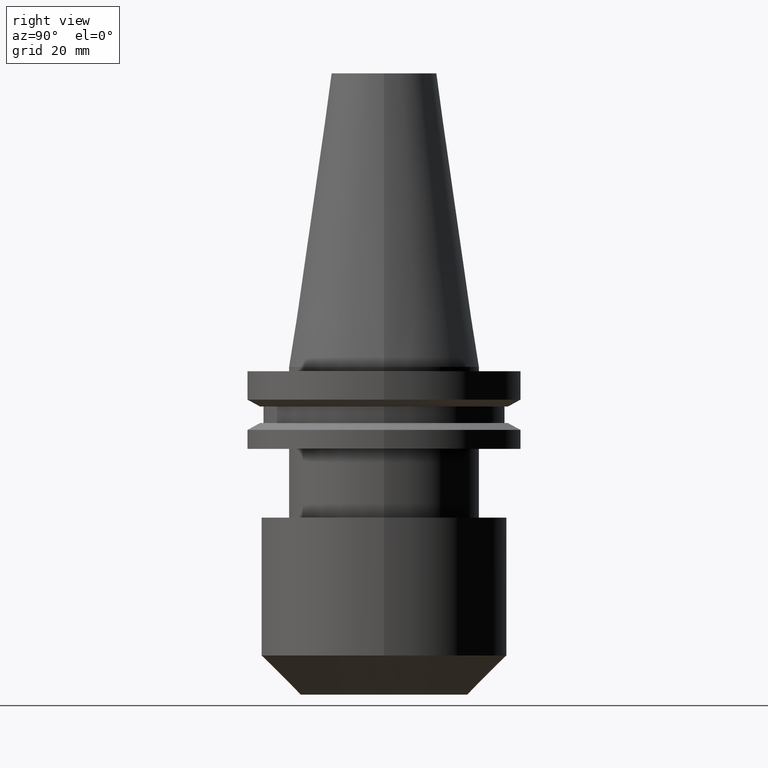
[diagram: clean part render]
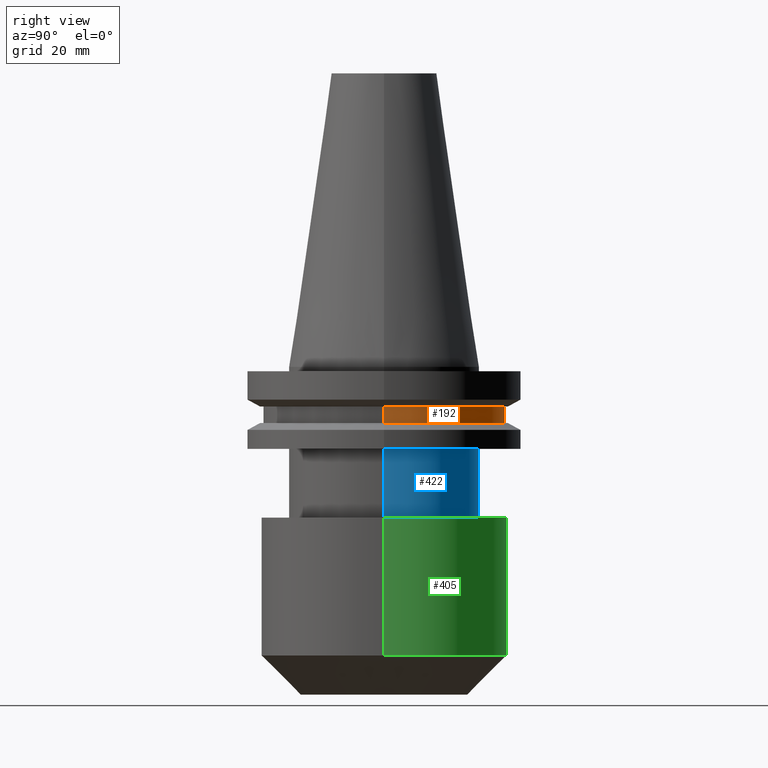
[diagram: same view with three faces highlighted in distinct colors, each labeled with its STEP entity id]
A machine part, right view with three faces highlighted in distinct colors.
Their STEP definitions:

[orange] entity #192 — the highlighted cylindrical surface (partial cylindrical patch) has radius 28.18 mm, axis along (-0, -0, 1).
#8 = ORIENTED_EDGE ( 'NONE', *, *, #667, .F. ) ;
#14 = DIRECTION ( 'NONE',  ( -0.000000000000000000, -0.000000000000000000, 1.000000000000000000 ) ) ;
#15 = EDGE_CURVE ( 'NONE', #500, #750, #730, .T. ) ;
#23 = CARTESIAN_POINT ( 'NONE',  ( 0.000000000000000000, 0.000000000000000000, -9.204999999999991189 ) ) ;
#25 = DIRECTION ( 'NONE',  ( 1.000000000000000000, 0.000000000000000000, 0.000000000000000000 ) ) ;
#53 = DIRECTION ( 'NONE',  ( -0.000000000000000000, -0.000000000000000000, 1.000000000000000000 ) ) ;
#61 = CARTESIAN_POINT ( 'NONE',  ( -28.17999999999999972, 3.451054679997241634E-15, 68.25000000000000000 ) ) ;
#63 = VECTOR ( 'NONE', #53, 1000.000000000000000 ) ;
#123 = ORIENTED_EDGE ( 'NONE', *, *, #796, .F. ) ;
#145 = CARTESIAN_POINT ( 'NONE',  ( 28.17999999999999972, 0.000000000000000000, -9.204999999999991189 ) ) ;
#181 = EDGE_CURVE ( 'NONE', #641, #500, #269, .T. ) ;
#192 = ADVANCED_FACE ( 'NONE', ( #415 ), #688, .T. ) ;
#240 = LINE ( 'NONE', #835, #63 ) ;
#269 = CIRCLE ( 'NONE', #752, 28.17999999999999972 ) ;
#285 = CARTESIAN_POINT ( 'NONE',  ( 0.000000000000000000, 0.000000000000000000, -13.05499999999999794 ) ) ;
#326 = CIRCLE ( 'NONE', #644, 28.17999999999999972 ) ;
#348 = DIRECTION ( 'NONE',  ( 1.000000000000000000, 0.000000000000000000, 0.000000000000000000 ) ) ;
#384 = DIRECTION ( 'NONE',  ( -0.000000000000000000, -0.000000000000000000, 1.000000000000000000 ) ) ;
#415 = FACE_OUTER_BOUND ( 'NONE', #853, .T. ) ;
#420 = DIRECTION ( 'NONE',  ( -0.000000000000000000, -0.000000000000000000, 1.000000000000000000 ) ) ;
#466 = AXIS2_PLACEMENT_3D ( 'NONE', #739, #490, #25 ) ;
#467 = ORIENTED_EDGE ( 'NONE', *, *, #15, .T. ) ;
#490 = DIRECTION ( 'NONE',  ( -0.000000000000000000, -0.000000000000000000, 1.000000000000000000 ) ) ;
#500 = VERTEX_POINT ( 'NONE', #594 ) ;
#548 = DIRECTION ( 'NONE',  ( 1.000000000000000000, 0.000000000000000000, 0.000000000000000000 ) ) ;
#594 = CARTESIAN_POINT ( 'NONE',  ( -28.17999999999999972, 3.451054679997241634E-15, -13.05499999999999794 ) ) ;
#614 = CARTESIAN_POINT ( 'NONE',  ( 28.17999999999999972, 0.000000000000000000, -13.05499999999999794 ) ) ;
#641 = VERTEX_POINT ( 'NONE', #614 ) ;
#644 = AXIS2_PLACEMENT_3D ( 'NONE', #23, #14, #348 ) ;
#655 = VERTEX_POINT ( 'NONE', #145 ) ;
#667 = EDGE_CURVE ( 'NONE', #655, #750, #326, .T. ) ;
#688 = CYLINDRICAL_SURFACE ( 'NONE', #466, 28.17999999999999972 ) ;
#690 = CARTESIAN_POINT ( 'NONE',  ( -28.17999999999999972, 3.451054679997241634E-15, -9.204999999999991189 ) ) ;
#730 = LINE ( 'NONE', #61, #820 ) ;
#739 = CARTESIAN_POINT ( 'NONE',  ( 0.000000000000000000, 0.000000000000000000, 68.25000000000000000 ) ) ;
#750 = VERTEX_POINT ( 'NONE', #690 ) ;
#752 = AXIS2_PLACEMENT_3D ( 'NONE', #285, #420, #548 ) ;
#763 = ORIENTED_EDGE ( 'NONE', *, *, #181, .T. ) ;
#796 = EDGE_CURVE ( 'NONE', #641, #655, #240, .T. ) ;
#820 = VECTOR ( 'NONE', #384, 1000.000000000000000 ) ;
#835 = CARTESIAN_POINT ( 'NONE',  ( 28.17999999999999972, 0.000000000000000000, 68.25000000000000000 ) ) ;
#853 = EDGE_LOOP ( 'NONE', ( #763, #467, #8, #123 ) ) ;

[blue] entity #422 — the highlighted cylindrical surface (partial cylindrical patch) has radius 22.225 mm, axis along (-0, -0, 1).
#10 = LINE ( 'NONE', #189, #163 ) ;
#21 = VERTEX_POINT ( 'NONE', #722 ) ;
#34 = VERTEX_POINT ( 'NONE', #275 ) ;
#45 = DIRECTION ( 'NONE',  ( 1.000000000000000000, 0.000000000000000000, 0.000000000000000000 ) ) ;
#78 = VECTOR ( 'NONE', #302, 1000.000000000000000 ) ;
#104 = LINE ( 'NONE', #363, #78 ) ;
#108 = DIRECTION ( 'NONE',  ( -0.000000000000000000, -0.000000000000000000, 1.000000000000000000 ) ) ;
#120 = ORIENTED_EDGE ( 'NONE', *, *, #411, .F. ) ;
#132 = EDGE_CURVE ( 'NONE', #456, #21, #778, .T. ) ;
#136 = DIRECTION ( 'NONE',  ( -0.000000000000000000, -0.000000000000000000, 1.000000000000000000 ) ) ;
#140 = DIRECTION ( 'NONE',  ( 1.000000000000000000, 0.000000000000000000, 0.000000000000000000 ) ) ;
#163 = VECTOR ( 'NONE', #136, 1000.000000000000000 ) ;
#175 = CARTESIAN_POINT ( 'NONE',  ( 0.000000000000000000, 0.000000000000000000, 68.25000000000000000 ) ) ;
#189 = CARTESIAN_POINT ( 'NONE',  ( -22.22500000000000142, 2.721777511104992849E-15, 68.25000000000000000 ) ) ;
#275 = CARTESIAN_POINT ( 'NONE',  ( 22.22500000000000142, 0.000000000000000000, -35.04999999999999716 ) ) ;
#297 = DIRECTION ( 'NONE',  ( 0.000000000000000000, 0.000000000000000000, -1.000000000000000000 ) ) ;
#302 = DIRECTION ( 'NONE',  ( -0.000000000000000000, -0.000000000000000000, 1.000000000000000000 ) ) ;
#306 = ORIENTED_EDGE ( 'NONE', *, *, #571, .T. ) ;
#363 = CARTESIAN_POINT ( 'NONE',  ( 22.22500000000000142, 0.000000000000000000, 68.25000000000000000 ) ) ;
#370 = DIRECTION ( 'NONE',  ( -1.000000000000000000, 0.000000000000000000, 0.000000000000000000 ) ) ;
#396 = VERTEX_POINT ( 'NONE', #832 ) ;
#411 = EDGE_CURVE ( 'NONE', #34, #456, #104, .T. ) ;
#422 = ADVANCED_FACE ( 'NONE', ( #632 ), #836, .T. ) ;
#431 = AXIS2_PLACEMENT_3D ( 'NONE', #694, #297, #370 ) ;
#456 = VERTEX_POINT ( 'NONE', #589 ) ;
#460 = ORIENTED_EDGE ( 'NONE', *, *, #132, .F. ) ;
#470 = CARTESIAN_POINT ( 'NONE',  ( 0.000000000000000000, 0.000000000000000000, -19.04999999999999716 ) ) ;
#473 = DIRECTION ( 'NONE',  ( -0.000000000000000000, -0.000000000000000000, 1.000000000000000000 ) ) ;
#484 = ORIENTED_EDGE ( 'NONE', *, *, #748, .F. ) ;
#518 = AXIS2_PLACEMENT_3D ( 'NONE', #470, #473, #140 ) ;
#549 = CIRCLE ( 'NONE', #431, 22.22500000000000142 ) ;
#571 = EDGE_CURVE ( 'NONE', #396, #21, #10, .T. ) ;
#589 = CARTESIAN_POINT ( 'NONE',  ( 22.22500000000000142, 0.000000000000000000, -19.04999999999999716 ) ) ;
#604 = EDGE_LOOP ( 'NONE', ( #484, #306, #460, #120 ) ) ;
#629 = AXIS2_PLACEMENT_3D ( 'NONE', #175, #108, #45 ) ;
#632 = FACE_OUTER_BOUND ( 'NONE', #604, .T. ) ;
#694 = CARTESIAN_POINT ( 'NONE',  ( 0.000000000000000000, 0.000000000000000000, -35.04999999999999716 ) ) ;
#722 = CARTESIAN_POINT ( 'NONE',  ( -22.22500000000000142, 2.721777511104992849E-15, -19.04999999999999716 ) ) ;
#748 = EDGE_CURVE ( 'NONE', #396, #34, #549, .T. ) ;
#778 = CIRCLE ( 'NONE', #518, 22.22500000000000142 ) ;
#832 = CARTESIAN_POINT ( 'NONE',  ( -22.22500000000000142, 2.721777511104992849E-15, -35.04999999999999716 ) ) ;
#836 = CYLINDRICAL_SURFACE ( 'NONE', #629, 22.22500000000000142 ) ;

[green] entity #405 — the highlighted cylindrical surface (partial cylindrical patch) has radius 28.6 mm, axis along (-0, -0, 1).
#11 = CIRCLE ( 'NONE', #93, 28.60000000000000142 ) ;
#33 = CARTESIAN_POINT ( 'NONE',  ( 28.60000000000000142, 0.000000000000000000, 0.000000000000000000 ) ) ;
#84 = ORIENTED_EDGE ( 'NONE', *, *, #823, .T. ) ;
#93 = AXIS2_PLACEMENT_3D ( 'NONE', #850, #533, #454 ) ;
#114 = ORIENTED_EDGE ( 'NONE', *, *, #359, .T. ) ;
#168 = EDGE_CURVE ( 'NONE', #787, #474, #230, .T. ) ;
#171 = DIRECTION ( 'NONE',  ( -0.000000000000000000, -0.000000000000000000, 1.000000000000000000 ) ) ;
#179 = VERTEX_POINT ( 'NONE', #757 ) ;
#198 = CARTESIAN_POINT ( 'NONE',  ( 28.60000000000000142, 0.000000000000000000, -35.04999999999999716 ) ) ;
#226 = CARTESIAN_POINT ( 'NONE',  ( -28.60000000000000142, 3.502489845561430207E-15, -67.10000000000000853 ) ) ;
#230 = LINE ( 'NONE', #33, #308 ) ;
#234 = CARTESIAN_POINT ( 'NONE',  ( 0.000000000000000000, 0.000000000000000000, 0.000000000000000000 ) ) ;
#260 = ORIENTED_EDGE ( 'NONE', *, *, #458, .F. ) ;
#294 = VERTEX_POINT ( 'NONE', #226 ) ;
#305 = FACE_OUTER_BOUND ( 'NONE', #771, .T. ) ;
#308 = VECTOR ( 'NONE', #815, 1000.000000000000000 ) ;
#352 = VECTOR ( 'NONE', #701, 1000.000000000000000 ) ;
#359 = EDGE_CURVE ( 'NONE', #787, #294, #741, .T. ) ;
#405 = ADVANCED_FACE ( 'NONE', ( #305 ), #695, .T. ) ;
#428 = LINE ( 'NONE', #768, #352 ) ;
#429 = DIRECTION ( 'NONE',  ( 1.000000000000000000, 0.000000000000000000, 0.000000000000000000 ) ) ;
#454 = DIRECTION ( 'NONE',  ( 1.000000000000000000, 0.000000000000000000, 0.000000000000000000 ) ) ;
#458 = EDGE_CURVE ( 'NONE', #474, #179, #11, .T. ) ;
#474 = VERTEX_POINT ( 'NONE', #198 ) ;
#481 = AXIS2_PLACEMENT_3D ( 'NONE', #234, #171, #429 ) ;
#533 = DIRECTION ( 'NONE',  ( -0.000000000000000000, -0.000000000000000000, 1.000000000000000000 ) ) ;
#645 = DIRECTION ( 'NONE',  ( -0.000000000000000000, -0.000000000000000000, 1.000000000000000000 ) ) ;
#695 = CYLINDRICAL_SURFACE ( 'NONE', #481, 28.60000000000000142 ) ;
#698 = CARTESIAN_POINT ( 'NONE',  ( 28.60000000000000142, 0.000000000000000000, -67.10000000000000853 ) ) ;
#701 = DIRECTION ( 'NONE',  ( -0.000000000000000000, -0.000000000000000000, 1.000000000000000000 ) ) ;
#706 = DIRECTION ( 'NONE',  ( 1.000000000000000000, 0.000000000000000000, 0.000000000000000000 ) ) ;
#738 = AXIS2_PLACEMENT_3D ( 'NONE', #765, #645, #706 ) ;
#741 = CIRCLE ( 'NONE', #738, 28.60000000000000142 ) ;
#757 = CARTESIAN_POINT ( 'NONE',  ( -28.60000000000000142, 3.502489845561430207E-15, -35.04999999999999716 ) ) ;
#765 = CARTESIAN_POINT ( 'NONE',  ( 0.000000000000000000, 0.000000000000000000, -67.10000000000000853 ) ) ;
#768 = CARTESIAN_POINT ( 'NONE',  ( -28.60000000000000142, 3.502489845561430207E-15, 0.000000000000000000 ) ) ;
#771 = EDGE_LOOP ( 'NONE', ( #114, #84, #260, #843 ) ) ;
#787 = VERTEX_POINT ( 'NONE', #698 ) ;
#815 = DIRECTION ( 'NONE',  ( -0.000000000000000000, -0.000000000000000000, 1.000000000000000000 ) ) ;
#823 = EDGE_CURVE ( 'NONE', #294, #179, #428, .T. ) ;
#843 = ORIENTED_EDGE ( 'NONE', *, *, #168, .F. ) ;
#850 = CARTESIAN_POINT ( 'NONE',  ( 0.000000000000000000, 0.000000000000000000, -35.04999999999999716 ) ) ;